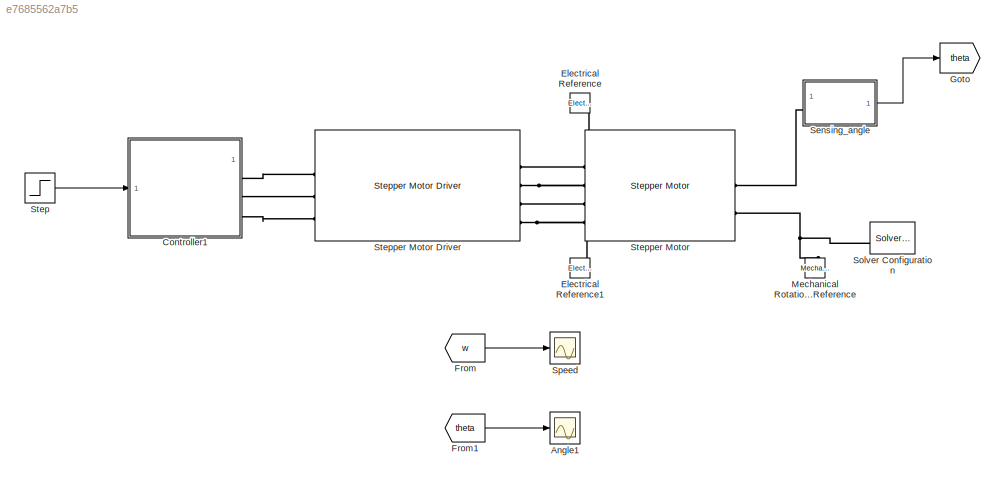
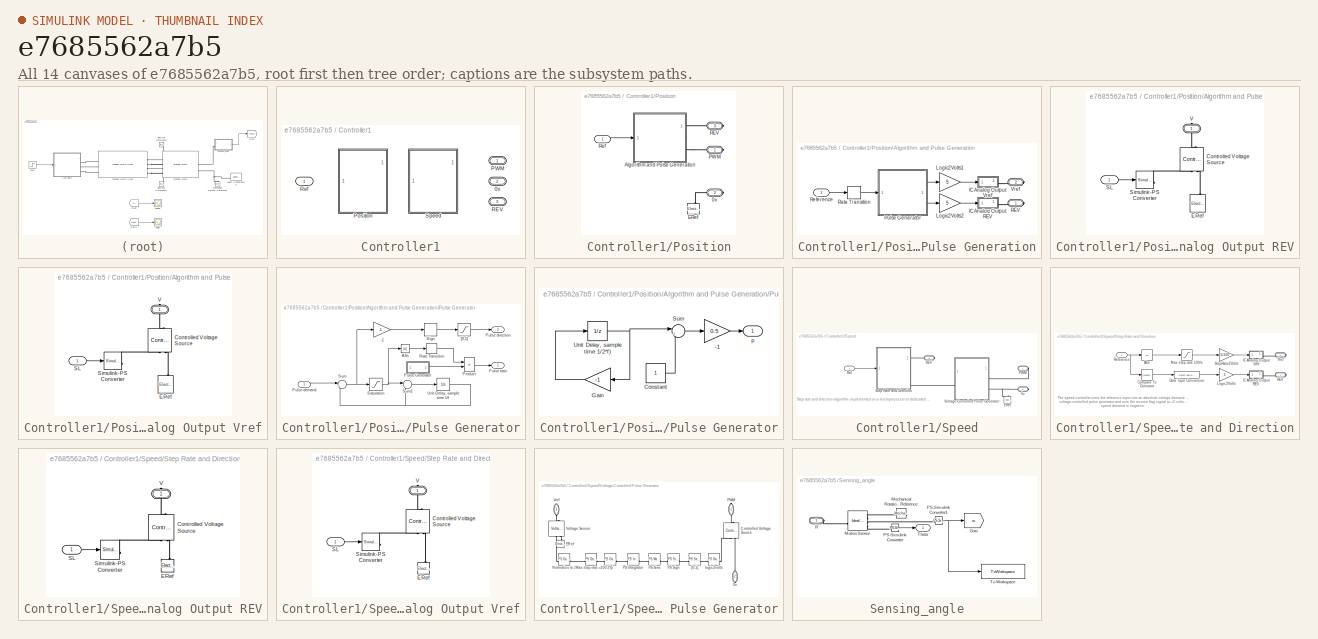
[diagram: thumbnail index - all 14 canvases of the model, root first then tree order]
MODEL slx_e7685562a7b5
KIND model
CONFIG AbsTol = 1e-3
CONFIG EnableMultiTasking = off
CONFIG FixedStep = auto
CONFIG MaxStep = auto
CONFIG MinStep = auto
CONFIG RelTol = 1e-3
CONFIG SampleTimeConstraint = Unconstrained
CONFIG SolverName = VariableStepAuto
CONFIG StartTime = 0.0
CONFIG StopTime = 2
BLOCK [Scope] Angle1
  Floating = off
  NumInputPorts = 1
  ScopeSpecificationString = Simulink.scopes.TimeScopeBlockCfg('CurrentConfiguration', extmgr.ConfigurationSet(extmgr.Configuration('Core','General UI',true),extmgr.Configuration('Core','Source UI',true),extmgr.Configuration('Sources','WiredSimulink',true,'DataLogging',true,'DataLoggingSaveFormat','Array','DataLoggingVariableName','theta'),extmgr.Configuration('Visuals','Time Domain',true,'SerializedDisplays',{struct('MinYLim...<+1418ch>
BLOCK [SubSystem] Controller1
  AttributesFormatString = %<BlockChoice>
  LabelModeActiveChoice = Position
  Variant = on
  VariantControlMode = label
BLOCK [PMIOPort] Controller1/0v
  Port = 2
  Side = Right
BLOCK [PMIOPort] Controller1/PWM
  Side = Right
BLOCK [SubSystem] Controller1/Position
  VariantControl = Position
BLOCK [PMIOPort] Controller1/Position/0v
  Port = 2
  Side = Right
BLOCK [SubSystem] Controller1/Position/Algorithm and Pulse Generation
BLOCK [SubSystem] Controller1/Position/Algorithm and Pulse Generation/IC Analog Output REV
BLOCK [Reference] Controller1/Position/Algorithm and Pulse Generation/IC Analog Output REV/Controlled Voltage Source  REF=fl_lib/Electrical/Electrical Sources/Controlled Voltage
Source
  NameLocation = right
  SourceBlock = fl_lib/Electrical/Electrical Sources/Controlled Voltage\nSource
  SourceType = Controlled Voltage\nSource
BLOCK [Reference] Controller1/Position/Algorithm and Pulse Generation/IC Analog Output REV/ERef  REF=fl_lib/Electrical/Electrical Elements/Electrical Reference
  NameLocation = right
  SourceBlock = fl_lib/Electrical/Electrical Elements/Electrical Reference
  SourceType = Electrical Reference
BLOCK [Inport] Controller1/Position/Algorithm and Pulse Generation/IC Analog Output REV/SL
BLOCK [Reference] Controller1/Position/Algorithm and Pulse Generation/IC Analog Output REV/Simulink-PS Converter  REF=nesl_utility/Simulink-PS
Converter
  SourceBlock = nesl_utility/Simulink-PS\nConverter
  SourceType = Simulink-PS\nConverter
BLOCK [PMIOPort] Controller1/Position/Algorithm and Pulse Generation/IC Analog Output REV/V
  NameLocation = right
  Side = Right
BLOCK [SubSystem] Controller1/Position/Algorithm and Pulse Generation/IC Analog Output Vref
  NameLocation = top
BLOCK [Reference] Controller1/Position/Algorithm and Pulse Generation/IC Analog Output Vref/Controlled Voltage Source  REF=fl_lib/Electrical/Electrical Sources/Controlled Voltage
Source
  NameLocation = right
  SourceBlock = fl_lib/Electrical/Electrical Sources/Controlled Voltage\nSource
  SourceType = Controlled Voltage\nSource
BLOCK [Reference] Controller1/Position/Algorithm and Pulse Generation/IC Analog Output Vref/ERef  REF=fl_lib/Electrical/Electrical Elements/Electrical Reference
  NameLocation = right
  SourceBlock = fl_lib/Electrical/Electrical Elements/Electrical Reference
  SourceType = Electrical Reference
BLOCK [Inport] Controller1/Position/Algorithm and Pulse Generation/IC Analog Output Vref/SL
BLOCK [Reference] Controller1/Position/Algorithm and Pulse Generation/IC Analog Output Vref/Simulink-PS Converter  REF=nesl_utility/Simulink-PS
Converter
  SourceBlock = nesl_utility/Simulink-PS\nConverter
  SourceType = Simulink-PS\nConverter
BLOCK [PMIOPort] Controller1/Position/Algorithm and Pulse Generation/IC Analog Output Vref/V
  NameLocation = right
  Side = Right
BLOCK [Gain] Controller1/Position/Algorithm and Pulse Generation/Logic2Volts1
  Gain = 5
  NameLocation = top
BLOCK [Gain] Controller1/Position/Algorithm and Pulse Generation/Logic2Volts2
  Gain = 5
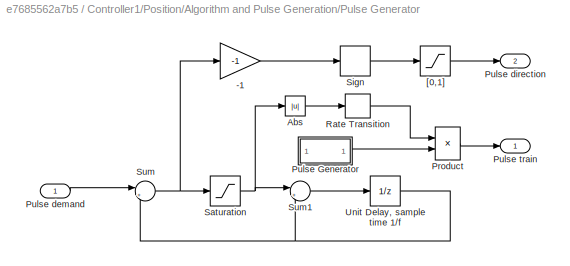
BLOCK [SubSystem] Controller1/Position/Algorithm and Pulse Generation/Pulse Generator
BLOCK [Gain] Controller1/Position/Algorithm and Pulse Generation/Pulse Generator/-1
  Gain = -1
BLOCK [Abs] Controller1/Position/Algorithm and Pulse Generation/Pulse Generator/Abs
  SaturateOnIntegerOverflow = off
BLOCK [Product] Controller1/Position/Algorithm and Pulse Generation/Pulse Generator/Product
  InputSameDT = on
  OutDataTypeStr = Inherit: Same as first input
  SaturateOnIntegerOverflow = on
BLOCK [Inport] Controller1/Position/Algorithm and Pulse Generation/Pulse Generator/Pulse  demand
  SampleTime = 1/f
BLOCK [SubSystem] Controller1/Position/Algorithm and Pulse Generation/Pulse Generator/Pulse Generator
BLOCK [Gain] Controller1/Position/Algorithm and Pulse Generation/Pulse Generator/Pulse Generator/-1
  Gain = 0.5
BLOCK [Constant] Controller1/Position/Algorithm and Pulse Generation/Pulse Generator/Pulse Generator/Constant
  SampleTime = 1/(2*f)
BLOCK [Gain] Controller1/Position/Algorithm and Pulse Generation/Pulse Generator/Pulse Generator/Gain
  Gain = -1
BLOCK [Sum] Controller1/Position/Algorithm and Pulse Generation/Pulse Generator/Pulse Generator/Sum
  Inputs = |++
BLOCK [UnitDelay] Controller1/Position/Algorithm and Pulse Generation/Pulse Generator/Pulse Generator/Unit Delay, sample time 1//2*f)
  HasFrameUpgradeWarning = on
  InitialCondition = -1
  SampleTime = 1/(2*f)
BLOCK [Outport] Controller1/Position/Algorithm and Pulse Generation/Pulse Generator/Pulse Generator/p
  VectorParamsAs1DForOutWhenUnconnected = off
BLOCK [Outport] Controller1/Position/Algorithm and Pulse Generation/Pulse Generator/Pulse direction
  Port = 2
  VectorParamsAs1DForOutWhenUnconnected = off
BLOCK [Outport] Controller1/Position/Algorithm and Pulse Generation/Pulse Generator/Pulse train
  VectorParamsAs1DForOutWhenUnconnected = off
BLOCK [RateTransition] Controller1/Position/Algorithm and Pulse Generation/Pulse Generator/Rate Transition
  Deterministic = off
BLOCK [Saturate] Controller1/Position/Algorithm and Pulse Generation/Pulse Generator/Saturation
  LowerLimit = -1
  UpperLimit = 1
BLOCK [Signum] Controller1/Position/Algorithm and Pulse Generation/Pulse Generator/Sign
BLOCK [Sum] Controller1/Position/Algorithm and Pulse Generation/Pulse Generator/Sum
  Inputs = |+-
BLOCK [Sum] Controller1/Position/Algorithm and Pulse Generation/Pulse Generator/Sum1
  Inputs = |++
BLOCK [UnitDelay] Controller1/Position/Algorithm and Pulse Generation/Pulse Generator/Unit Delay, sample time 1//f
  HasFrameUpgradeWarning = on
  SampleTime = 1/f
BLOCK [Saturate] Controller1/Position/Algorithm and Pulse Generation/Pulse Generator/[0,1]
  LowerLimit = 0
  UpperLimit = 1
BLOCK [PMIOPort] Controller1/Position/Algorithm and Pulse Generation/REV
  Side = Right
BLOCK [RateTransition] Controller1/Position/Algorithm and Pulse Generation/Rate Transition
  Deterministic = off
  NameLocation = top
BLOCK [Inport] Controller1/Position/Algorithm and Pulse Generation/Reference
BLOCK [PMIOPort] Controller1/Position/Algorithm and Pulse Generation/Vref
  NameLocation = top
  Port = 2
  Side = Right
BLOCK [Reference] Controller1/Position/ERef  REF=fl_lib/Electrical/Electrical Elements/Electrical Reference
  NameLocation = left
  SourceBlock = fl_lib/Electrical/Electrical Elements/Electrical Reference
  SourceType = Electrical Reference
BLOCK [PMIOPort] Controller1/Position/PWM
  Side = Right
BLOCK [PMIOPort] Controller1/Position/REV
  NameLocation = top
  Port = 3
  Side = Right
BLOCK [Inport] Controller1/Position/Ref
BLOCK [PMIOPort] Controller1/REV
  Port = 3
  Side = Right
BLOCK [Inport] Controller1/Ref
BLOCK [SubSystem] Controller1/Speed
  VariantControl = Speed
BLOCK [PMIOPort] Controller1/Speed/0v
  Port = 2
  Side = Right
BLOCK [Reference] Controller1/Speed/ERef  REF=fl_lib/Electrical/Electrical Elements/Electrical Reference
  NameLocation = right
  SourceBlock = fl_lib/Electrical/Electrical Elements/Electrical Reference
  SourceType = Electrical Reference
BLOCK [PMIOPort] Controller1/Speed/PWM
  Side = Right
BLOCK [PMIOPort] Controller1/Speed/REV
  Port = 3
  Side = Right
BLOCK [Inport] Controller1/Speed/Ref
BLOCK [SubSystem] Controller1/Speed/Step Rate and Direction
BLOCK [Abs] Controller1/Speed/Step Rate and Direction/Abs
  SaturateOnIntegerOverflow = off
BLOCK [Reference] Controller1/Speed/Step Rate and Direction/Compare To Constant  REF=simulink/Logic and Bit
Operations/Compare
To Constant
  SourceBlock = simulink/Logic and Bit\nOperations/Compare\nTo Constant
  SourceType = Compare To Constant
BLOCK [DataTypeConversion] Controller1/Speed/Step Rate and Direction/Data Type Conversion
  RndMeth = Floor
  SaturateOnIntegerOverflow = off
BLOCK [SubSystem] Controller1/Speed/Step Rate and Direction/IC Analog Output REV
BLOCK [Reference] Controller1/Speed/Step Rate and Direction/IC Analog Output REV/Controlled Voltage Source  REF=fl_lib/Electrical/Electrical Sources/Controlled Voltage
Source
  NameLocation = right
  SourceBlock = fl_lib/Electrical/Electrical Sources/Controlled Voltage\nSource
  SourceType = Controlled Voltage\nSource
BLOCK [Reference] Controller1/Speed/Step Rate and Direction/IC Analog Output REV/ERef  REF=fl_lib/Electrical/Electrical Elements/Electrical Reference
  NameLocation = right
  SourceBlock = fl_lib/Electrical/Electrical Elements/Electrical Reference
  SourceType = Electrical Reference
BLOCK [Inport] Controller1/Speed/Step Rate and Direction/IC Analog Output REV/SL
BLOCK [Reference] Controller1/Speed/Step Rate and Direction/IC Analog Output REV/Simulink-PS Converter  REF=nesl_utility/Simulink-PS
Converter
  SourceBlock = nesl_utility/Simulink-PS\nConverter
  SourceType = Simulink-PS\nConverter
BLOCK [PMIOPort] Controller1/Speed/Step Rate and Direction/IC Analog Output REV/V
  NameLocation = right
  Side = Right
BLOCK [SubSystem] Controller1/Speed/Step Rate and Direction/IC Analog Output Vref
BLOCK [Reference] Controller1/Speed/Step Rate and Direction/IC Analog Output Vref/Controlled Voltage Source  REF=fl_lib/Electrical/Electrical Sources/Controlled Voltage
Source
  NameLocation = right
  SourceBlock = fl_lib/Electrical/Electrical Sources/Controlled Voltage\nSource
  SourceType = Controlled Voltage\nSource
BLOCK [Reference] Controller1/Speed/Step Rate and Direction/IC Analog Output Vref/ERef  REF=fl_lib/Electrical/Electrical Elements/Electrical Reference
  NameLocation = right
  SourceBlock = fl_lib/Electrical/Electrical Elements/Electrical Reference
  SourceType = Electrical Reference
BLOCK [Inport] Controller1/Speed/Step Rate and Direction/IC Analog Output Vref/SL
BLOCK [Reference] Controller1/Speed/Step Rate and Direction/IC Analog Output Vref/Simulink-PS Converter  REF=nesl_utility/Simulink-PS
Converter
  SourceBlock = nesl_utility/Simulink-PS\nConverter
  SourceType = Simulink-PS\nConverter
BLOCK [PMIOPort] Controller1/Speed/Step Rate and Direction/IC Analog Output Vref/V
  NameLocation = right
  Side = Right
BLOCK [Gain] Controller1/Speed/Step Rate and Direction/Logic2Volts
  Gain = 5
BLOCK [Saturate] Controller1/Speed/Step Rate and Direction/Max step rate 100//s
  LowerLimit = 0
  UpperLimit = 100
BLOCK [PMIOPort] Controller1/Speed/Step Rate and Direction/REV
  Side = Right
BLOCK [Inport] Controller1/Speed/Step Rate and Direction/Reference
  NameLocation = top
BLOCK [Gain] Controller1/Speed/Step Rate and Direction/StepRate2Volts
  Gain = 5/100
BLOCK [PMIOPort] Controller1/Speed/Step Rate and Direction/Vref
  Port = 2
  Side = Right
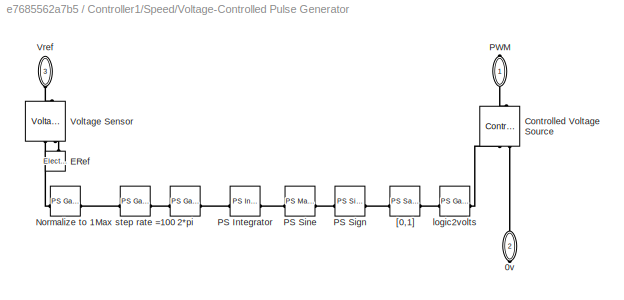
BLOCK [SubSystem] Controller1/Speed/Voltage-Controlled Pulse Generator
BLOCK [PMIOPort] Controller1/Speed/Voltage-Controlled Pulse Generator/0v
  NameLocation = left
  Port = 2
  Side = Right
BLOCK [Reference] Controller1/Speed/Voltage-Controlled Pulse Generator/2*pi  REF=fl_ps_legacy_lib/Legacy Physical
Signals/Functions/PS Gain
  SourceBlock = fl_ps_legacy_lib/Legacy Physical\nSignals/Functions/PS Gain
  SourceType = PS Gain
BLOCK [Reference] Controller1/Speed/Voltage-Controlled Pulse Generator/Controlled Voltage Source  REF=fl_lib/Electrical/Electrical Sources/Controlled Voltage
Source
  NameLocation = left
  SourceBlock = fl_lib/Electrical/Electrical Sources/Controlled Voltage\nSource
  SourceType = Controlled Voltage\nSource
BLOCK [Reference] Controller1/Speed/Voltage-Controlled Pulse Generator/ERef  REF=fl_lib/Electrical/Electrical Elements/Electrical Reference
  NameLocation = right
  SourceBlock = fl_lib/Electrical/Electrical Elements/Electrical Reference
  SourceType = Electrical Reference
BLOCK [Reference] Controller1/Speed/Voltage-Controlled Pulse Generator/Max step rate =100  REF=fl_ps_legacy_lib/Legacy Physical
Signals/Functions/PS Gain
  NameLocation = top
  SourceBlock = fl_ps_legacy_lib/Legacy Physical\nSignals/Functions/PS Gain
  SourceType = PS Gain
BLOCK [Reference] Controller1/Speed/Voltage-Controlled Pulse Generator/Normalize to 1  REF=fl_ps_legacy_lib/Legacy Physical
Signals/Functions/PS Gain
  SourceBlock = fl_ps_legacy_lib/Legacy Physical\nSignals/Functions/PS Gain
  SourceType = PS Gain
BLOCK [Reference] Controller1/Speed/Voltage-Controlled Pulse Generator/PS Integrator  REF=fl_ps_legacy_lib/Legacy Physical
Signals/Linear Operators/PS Integrator
  NameLocation = top
  SourceBlock = fl_ps_legacy_lib/Legacy Physical\nSignals/Linear Operators/PS Integrator
  SourceType = PS Integrator
BLOCK [Reference] Controller1/Speed/Voltage-Controlled Pulse Generator/PS Sign  REF=fl_ps_legacy_lib/Legacy Physical
Signals/Nonlinear Operators/PS Sign
  SourceBlock = fl_ps_legacy_lib/Legacy Physical\nSignals/Nonlinear Operators/PS Sign
  SourceType = PS Sign
BLOCK [Reference] Controller1/Speed/Voltage-Controlled Pulse Generator/PS Sine  REF=fl_ps_legacy_lib/Legacy Physical
Signals/Functions/PS Math Function
  SourceBlock = fl_ps_legacy_lib/Legacy Physical\nSignals/Functions/PS Math Function
  SourceType = PS Math Function
BLOCK [PMIOPort] Controller1/Speed/Voltage-Controlled Pulse Generator/PWM
  NameLocation = left
  Side = Right
BLOCK [Reference] Controller1/Speed/Voltage-Controlled Pulse Generator/Voltage Sensor  REF=fl_lib/Electrical/Electrical Sensors/Voltage Sensor
  NameLocation = right
  SourceBlock = fl_lib/Electrical/Electrical Sensors/Voltage Sensor
  SourceType = Voltage Sensor
BLOCK [PMIOPort] Controller1/Speed/Voltage-Controlled Pulse Generator/Vref
  NameLocation = right
  Port = 3
  Side = Left
BLOCK [Reference] Controller1/Speed/Voltage-Controlled Pulse Generator/[0,1]  REF=fl_ps_legacy_lib/Legacy Physical
Signals/Nonlinear Operators/PS Saturation
  SourceBlock = fl_ps_legacy_lib/Legacy Physical\nSignals/Nonlinear Operators/PS Saturation
  SourceType = PS Saturation
BLOCK [Reference] Controller1/Speed/Voltage-Controlled Pulse Generator/logic2volts  REF=fl_ps_legacy_lib/Legacy Physical
Signals/Functions/PS Gain
  SourceBlock = fl_ps_legacy_lib/Legacy Physical\nSignals/Functions/PS Gain
  SourceType = PS Gain
BLOCK [Reference] Electrical Reference  REF=fl_lib/Electrical/Electrical Elements/Electrical Reference
  NameLocation = top
  SourceBlock = fl_lib/Electrical/Electrical Elements/Electrical Reference
  SourceType = Electrical Reference
BLOCK [Reference] Electrical Reference1  REF=fl_lib/Electrical/Electrical Elements/Electrical Reference
  NameLocation = top
  SourceBlock = fl_lib/Electrical/Electrical Elements/Electrical Reference
  SourceType = Electrical Reference
BLOCK [From] From
  GotoTag = w
  TagVisibility = global
BLOCK [From] From1
  GotoTag = theta
BLOCK [Goto] Goto
  GotoTag = theta
BLOCK [Reference] Mechanical Rotational Reference  REF=fl_lib/Mechanical/Rotational Elements/Mechanical
Rotational Reference
  NameLocation = right
  SourceBlock = fl_lib/Mechanical/Rotational Elements/Mechanical\nRotational Reference
  SourceType = Mechanical\nRotational Reference
BLOCK [SubSystem] Sensing_angle
BLOCK [Reference] Sensing_angle/ Motion Sensor  REF=fl_lib/Mechanical/Mechanical Sensors/Ideal Rotational
Motion Sensor
  SourceBlock = fl_lib/Mechanical/Mechanical Sensors/Ideal Rotational\nMotion Sensor
  SourceType = Ideal Rotational\nMotion Sensor
BLOCK [Goto] Sensing_angle/Goto
  GotoTag = w
  TagVisibility = global
BLOCK [Reference] Sensing_angle/Mechanical Rotational Reference  REF=fl_lib/Mechanical/Rotational Elements/Mechanical
Rotational Reference
  NameLocation = top
  SourceBlock = fl_lib/Mechanical/Rotational Elements/Mechanical\nRotational Reference
  SourceType = Mechanical\nRotational Reference
BLOCK [Reference] Sensing_angle/PS-Simulink Converter  REF=nesl_utility/PS-Simulink
Converter
  SourceBlock = nesl_utility/PS-Simulink\nConverter
  SourceType = PS-Simulink\nConverter
BLOCK [Reference] Sensing_angle/PS-Simulink Converter1  REF=nesl_utility/PS-Simulink
Converter
  SourceBlock = nesl_utility/PS-Simulink\nConverter
  SourceType = PS-Simulink\nConverter
BLOCK [PMIOPort] Sensing_angle/R
  Side = Left
BLOCK [Outport] Sensing_angle/Theta
BLOCK [ToWorkspace] Sensing_angle/To Workspace
  FixptAsFi = on
  MaxDataPoints = inf
  SampleTime = -1
  SaveFormat = Timeseries
  VariableName = simout
BLOCK [Reference] Solver Configuration  REF=nesl_utility/Solver
Configuration
  SourceBlock = nesl_utility/Solver\nConfiguration
  SourceType = Solver\nConfiguration
BLOCK [Scope] Speed
  Floating = off
  NumInputPorts = 1
  ScopeSpecificationString = Simulink.scopes.TimeScopeBlockCfg('CurrentConfiguration', extmgr.ConfigurationSet(extmgr.Configuration('Core','General UI',true),extmgr.Configuration('Core','Source UI',true),extmgr.Configuration('Sources','WiredSimulink',true,'DataLogging',true,'DataLoggingSaveFormat','Array','DataLoggingVariableName','speed'),extmgr.Configuration('Visuals','Time Domain',true,'SerializedDisplays',{struct('MinYLim...<+1433ch>
BLOCK [Step] Step
  After = 0
  Before = 10
  SampleTime = 0
BLOCK [Reference] Stepper Motor  REF=ee_lib/Electromechanical/Reluctance & Stepper/Stepper Motor
  SourceBlock = ee_lib/Electromechanical/Reluctance & Stepper/Stepper Motor
  SourceType = Stepper Motor
BLOCK [Reference] Stepper Motor Driver  REF=ee_lib/Electromechanical/Reluctance & Stepper/Stepper Motor Driver
  SourceBlock = ee_lib/Electromechanical/Reluctance & Stepper/Stepper Motor Driver
  SourceType = Stepper Motor Driver
ANNOTATION Controller1/Speed: Step rate and direction algorithm implemented on a microprocessor or dedicated discrete chip
ANNOTATION Controller1/Speed/Step Rate and Direction: The speed controller turns the reference input into an absolute voltage demand for the voltage-controlled pulse generator and sets the reverse flag signal to +5 volts when the speed demand is negative.
LINE Controller1/Position/Algorithm and Pulse Generation/IC Analog Output REV/SL:1 -> Controller1/Position/Algorithm and Pulse Generation/IC Analog Output REV/Simulink-PS Converter:1
LINE Controller1/Position/Algorithm and Pulse Generation/IC Analog Output Vref/SL:1 -> Controller1/Position/Algorithm and Pulse Generation/IC Analog Output Vref/Simulink-PS Converter:1
LINE Controller1/Position/Algorithm and Pulse Generation/Logic2Volts1:1 -> Controller1/Position/Algorithm and Pulse Generation/IC Analog Output Vref:1
LINE Controller1/Position/Algorithm and Pulse Generation/Logic2Volts2:1 -> Controller1/Position/Algorithm and Pulse Generation/IC Analog Output REV:1
LINE Controller1/Position/Algorithm and Pulse Generation/Pulse Generator/-1:1 -> Controller1/Position/Algorithm and Pulse Generation/Pulse Generator/Sign:1
LINE Controller1/Position/Algorithm and Pulse Generation/Pulse Generator/Abs:1 -> Controller1/Position/Algorithm and Pulse Generation/Pulse Generator/Rate Transition:1
LINE Controller1/Position/Algorithm and Pulse Generation/Pulse Generator/Product:1 -> Controller1/Position/Algorithm and Pulse Generation/Pulse Generator/Pulse train:1
LINE Controller1/Position/Algorithm and Pulse Generation/Pulse Generator/Pulse  demand:1 -> Controller1/Position/Algorithm and Pulse Generation/Pulse Generator/Sum:1
LINE Controller1/Position/Algorithm and Pulse Generation/Pulse Generator/Pulse Generator/-1:1 -> Controller1/Position/Algorithm and Pulse Generation/Pulse Generator/Pulse Generator/p:1
LINE Controller1/Position/Algorithm and Pulse Generation/Pulse Generator/Pulse Generator/Constant:1 -> Controller1/Position/Algorithm and Pulse Generation/Pulse Generator/Pulse Generator/Sum:2
LINE Controller1/Position/Algorithm and Pulse Generation/Pulse Generator/Pulse Generator/Gain:1 -> Controller1/Position/Algorithm and Pulse Generation/Pulse Generator/Pulse Generator/Unit Delay, sample time 1//2*f):1
LINE Controller1/Position/Algorithm and Pulse Generation/Pulse Generator/Pulse Generator/Sum:1 -> Controller1/Position/Algorithm and Pulse Generation/Pulse Generator/Pulse Generator/-1:1
NET Controller1/Position/Algorithm and Pulse Generation/Pulse Generator/Pulse Generator/Unit Delay, sample time 1//2*f):1 -> Controller1/Position/Algorithm and Pulse Generation/Pulse Generator/Pulse Generator/Gain:1, Controller1/Position/Algorithm and Pulse Generation/Pulse Generator/Pulse Generator/Sum:1
LINE Controller1/Position/Algorithm and Pulse Generation/Pulse Generator/Pulse Generator:1 -> Controller1/Position/Algorithm and Pulse Generation/Pulse Generator/Product:2
LINE Controller1/Position/Algorithm and Pulse Generation/Pulse Generator/Rate Transition:1 -> Controller1/Position/Algorithm and Pulse Generation/Pulse Generator/Product:1
NET Controller1/Position/Algorithm and Pulse Generation/Pulse Generator/Saturation:1 -> Controller1/Position/Algorithm and Pulse Generation/Pulse Generator/Abs:1, Controller1/Position/Algorithm and Pulse Generation/Pulse Generator/Sum1:1
LINE Controller1/Position/Algorithm and Pulse Generation/Pulse Generator/Sign:1 -> Controller1/Position/Algorithm and Pulse Generation/Pulse Generator/[0,1]:1
LINE Controller1/Position/Algorithm and Pulse Generation/Pulse Generator/Sum1:1 -> Controller1/Position/Algorithm and Pulse Generation/Pulse Generator/Unit Delay, sample time 1//f:1
NET Controller1/Position/Algorithm and Pulse Generation/Pulse Generator/Sum:1 -> Controller1/Position/Algorithm and Pulse Generation/Pulse Generator/-1:1, Controller1/Position/Algorithm and Pulse Generation/Pulse Generator/Saturation:1
NET Controller1/Position/Algorithm and Pulse Generation/Pulse Generator/Unit Delay, sample time 1//f:1 -> Controller1/Position/Algorithm and Pulse Generation/Pulse Generator/Sum1:2, Controller1/Position/Algorithm and Pulse Generation/Pulse Generator/Sum:2
LINE Controller1/Position/Algorithm and Pulse Generation/Pulse Generator/[0,1]:1 -> Controller1/Position/Algorithm and Pulse Generation/Pulse Generator/Pulse direction:1
LINE Controller1/Position/Algorithm and Pulse Generation/Pulse Generator:1 -> Controller1/Position/Algorithm and Pulse Generation/Logic2Volts1:1
LINE Controller1/Position/Algorithm and Pulse Generation/Pulse Generator:2 -> Controller1/Position/Algorithm and Pulse Generation/Logic2Volts2:1
LINE Controller1/Position/Algorithm and Pulse Generation/Rate Transition:1 -> Controller1/Position/Algorithm and Pulse Generation/Pulse Generator:1
LINE Controller1/Position/Algorithm and Pulse Generation/Reference:1 -> Controller1/Position/Algorithm and Pulse Generation/Rate Transition:1
LINE Controller1/Position/Ref:1 -> Controller1/Position/Algorithm and Pulse Generation:1
LINE Controller1/Speed/Ref:1 -> Controller1/Speed/Step Rate and Direction:1
LINE Controller1/Speed/Step Rate and Direction/Abs:1 -> Controller1/Speed/Step Rate and Direction/Max step rate 100//s:1
LINE Controller1/Speed/Step Rate and Direction/Compare To Constant:1 -> Controller1/Speed/Step Rate and Direction/Data Type Conversion:1
LINE Controller1/Speed/Step Rate and Direction/Data Type Conversion:1 -> Controller1/Speed/Step Rate and Direction/Logic2Volts:1
LINE Controller1/Speed/Step Rate and Direction/IC Analog Output REV/SL:1 -> Controller1/Speed/Step Rate and Direction/IC Analog Output REV/Simulink-PS Converter:1
LINE Controller1/Speed/Step Rate and Direction/IC Analog Output Vref/SL:1 -> Controller1/Speed/Step Rate and Direction/IC Analog Output Vref/Simulink-PS Converter:1
LINE Controller1/Speed/Step Rate and Direction/Logic2Volts:1 -> Controller1/Speed/Step Rate and Direction/IC Analog Output REV:1
LINE Controller1/Speed/Step Rate and Direction/Max step rate 100//s:1 -> Controller1/Speed/Step Rate and Direction/StepRate2Volts:1
NET Controller1/Speed/Step Rate and Direction/Reference:1 -> Controller1/Speed/Step Rate and Direction/Abs:1, Controller1/Speed/Step Rate and Direction/Compare To Constant:1
LINE Controller1/Speed/Step Rate and Direction/StepRate2Volts:1 -> Controller1/Speed/Step Rate and Direction/IC Analog Output Vref:1
LINE From1:1 -> Angle1:1
LINE From:1 -> Speed:1
NET Sensing_angle/PS-Simulink Converter1:1 -> Sensing_angle/Goto:1, Sensing_angle/To Workspace:1
LINE Sensing_angle/PS-Simulink Converter:1 -> Sensing_angle/Theta:1
LINE Sensing_angle:1 -> Goto:1
LINE Step:1 -> Controller1:1
PLINE Controller1/Position/0v:RConn1 -- Controller1/Position/ERef:LConn1
PLINE Controller1/Position/Algorithm and Pulse Generation/IC Analog Output REV/Controlled Voltage Source:LConn1 -- Controller1/Position/Algorithm and Pulse Generation/IC Analog Output REV/V:RConn1
PLINE Controller1/Position/Algorithm and Pulse Generation/IC Analog Output REV/Controlled Voltage Source:RConn1 -- Controller1/Position/Algorithm and Pulse Generation/IC Analog Output REV/Simulink-PS Converter:RConn1
PLINE Controller1/Position/Algorithm and Pulse Generation/IC Analog Output REV/Controlled Voltage Source:RConn2 -- Controller1/Position/Algorithm and Pulse Generation/IC Analog Output REV/ERef:LConn1
PLINE Controller1/Position/Algorithm and Pulse Generation/IC Analog Output REV:RConn1 -- Controller1/Position/Algorithm and Pulse Generation/REV:RConn1
PLINE Controller1/Position/Algorithm and Pulse Generation/IC Analog Output Vref/Controlled Voltage Source:LConn1 -- Controller1/Position/Algorithm and Pulse Generation/IC Analog Output Vref/V:RConn1
PLINE Controller1/Position/Algorithm and Pulse Generation/IC Analog Output Vref/Controlled Voltage Source:RConn1 -- Controller1/Position/Algorithm and Pulse Generation/IC Analog Output Vref/Simulink-PS Converter:RConn1
PLINE Controller1/Position/Algorithm and Pulse Generation/IC Analog Output Vref/Controlled Voltage Source:RConn2 -- Controller1/Position/Algorithm and Pulse Generation/IC Analog Output Vref/ERef:LConn1
PLINE Controller1/Position/Algorithm and Pulse Generation/IC Analog Output Vref:RConn1 -- Controller1/Position/Algorithm and Pulse Generation/Vref:RConn1
PLINE Controller1/Position/Algorithm and Pulse Generation:RConn1 -- Controller1/Position/REV:RConn1
PLINE Controller1/Position/Algorithm and Pulse Generation:RConn2 -- Controller1/Position/PWM:RConn1
PNET net1: Controller1/Speed/0v:RConn1 -- Controller1/Speed/ERef:LConn1 -- Controller1/Speed/Voltage-Controlled Pulse Generator:RConn2
PLINE Controller1/Speed/PWM:RConn1 -- Controller1/Speed/Voltage-Controlled Pulse Generator:RConn1
PLINE Controller1/Speed/REV:RConn1 -- Controller1/Speed/Step Rate and Direction:RConn1
PLINE Controller1/Speed/Step Rate and Direction/IC Analog Output REV/Controlled Voltage Source:LConn1 -- Controller1/Speed/Step Rate and Direction/IC Analog Output REV/V:RConn1
PLINE Controller1/Speed/Step Rate and Direction/IC Analog Output REV/Controlled Voltage Source:RConn1 -- Controller1/Speed/Step Rate and Direction/IC Analog Output REV/Simulink-PS Converter:RConn1
PLINE Controller1/Speed/Step Rate and Direction/IC Analog Output REV/Controlled Voltage Source:RConn2 -- Controller1/Speed/Step Rate and Direction/IC Analog Output REV/ERef:LConn1
PLINE Controller1/Speed/Step Rate and Direction/IC Analog Output REV:RConn1 -- Controller1/Speed/Step Rate and Direction/REV:RConn1
PLINE Controller1/Speed/Step Rate and Direction/IC Analog Output Vref/Controlled Voltage Source:LConn1 -- Controller1/Speed/Step Rate and Direction/IC Analog Output Vref/V:RConn1
PLINE Controller1/Speed/Step Rate and Direction/IC Analog Output Vref/Controlled Voltage Source:RConn1 -- Controller1/Speed/Step Rate and Direction/IC Analog Output Vref/Simulink-PS Converter:RConn1
PLINE Controller1/Speed/Step Rate and Direction/IC Analog Output Vref/Controlled Voltage Source:RConn2 -- Controller1/Speed/Step Rate and Direction/IC Analog Output Vref/ERef:LConn1
PLINE Controller1/Speed/Step Rate and Direction/IC Analog Output Vref:RConn1 -- Controller1/Speed/Step Rate and Direction/Vref:RConn1
PLINE Controller1/Speed/Step Rate and Direction:RConn2 -- Controller1/Speed/Voltage-Controlled Pulse Generator:LConn1
PLINE Controller1/Speed/Voltage-Controlled Pulse Generator/0v:RConn1 -- Controller1/Speed/Voltage-Controlled Pulse Generator/Controlled Voltage Source:RConn2
PLINE Controller1/Speed/Voltage-Controlled Pulse Generator/2*pi:LConn1 -- Controller1/Speed/Voltage-Controlled Pulse Generator/Max step rate =100:RConn1
PLINE Controller1/Speed/Voltage-Controlled Pulse Generator/2*pi:RConn1 -- Controller1/Speed/Voltage-Controlled Pulse Generator/PS Integrator:LConn1
PLINE Controller1/Speed/Voltage-Controlled Pulse Generator/Controlled Voltage Source:LConn1 -- Controller1/Speed/Voltage-Controlled Pulse Generator/PWM:RConn1
PLINE Controller1/Speed/Voltage-Controlled Pulse Generator/Controlled Voltage Source:RConn1 -- Controller1/Speed/Voltage-Controlled Pulse Generator/logic2volts:RConn1
PLINE Controller1/Speed/Voltage-Controlled Pulse Generator/ERef:LConn1 -- Controller1/Speed/Voltage-Controlled Pulse Generator/Voltage Sensor:RConn2
PLINE Controller1/Speed/Voltage-Controlled Pulse Generator/Max step rate =100:LConn1 -- Controller1/Speed/Voltage-Controlled Pulse Generator/Normalize to 1:RConn1
PLINE Controller1/Speed/Voltage-Controlled Pulse Generator/Normalize to 1:LConn1 -- Controller1/Speed/Voltage-Controlled Pulse Generator/Voltage Sensor:RConn1
PLINE Controller1/Speed/Voltage-Controlled Pulse Generator/PS Integrator:RConn1 -- Controller1/Speed/Voltage-Controlled Pulse Generator/PS Sine:LConn1
PLINE Controller1/Speed/Voltage-Controlled Pulse Generator/PS Sign:LConn1 -- Controller1/Speed/Voltage-Controlled Pulse Generator/PS Sine:RConn1
PLINE Controller1/Speed/Voltage-Controlled Pulse Generator/PS Sign:RConn1 -- Controller1/Speed/Voltage-Controlled Pulse Generator/[0,1]:LConn1
PLINE Controller1/Speed/Voltage-Controlled Pulse Generator/Voltage Sensor:LConn1 -- Controller1/Speed/Voltage-Controlled Pulse Generator/Vref:RConn1
PLINE Controller1/Speed/Voltage-Controlled Pulse Generator/[0,1]:RConn1 -- Controller1/Speed/Voltage-Controlled Pulse Generator/logic2volts:LConn1
PLINE Controller1:RConn1 -- Stepper Motor Driver:LConn1
PLINE Controller1:RConn2 -- Stepper Motor Driver:LConn2
PLINE Controller1:RConn3 -- Stepper Motor Driver:LConn3
PNET net2: Electrical Reference1:LConn1 -- Stepper Motor Driver:RConn4 -- Stepper Motor:LConn4
PNET net3: Electrical Reference:LConn1 -- Stepper Motor Driver:RConn2 -- Stepper Motor:LConn2
PNET net4: Mechanical Rotational Reference:LConn1 -- Solver Configuration:RConn1 -- Stepper Motor:RConn2
PLINE Sensing_angle/ Motion Sensor:LConn1 -- Sensing_angle/R:RConn1
PLINE Sensing_angle/ Motion Sensor:RConn1 -- Sensing_angle/Mechanical Rotational Reference:LConn1
PLINE Sensing_angle/ Motion Sensor:RConn2 -- Sensing_angle/PS-Simulink Converter1:LConn1
PLINE Sensing_angle/ Motion Sensor:RConn3 -- Sensing_angle/PS-Simulink Converter:LConn1
PLINE Sensing_angle:LConn1 -- Stepper Motor:RConn1
PLINE Stepper Motor Driver:RConn1 -- Stepper Motor:LConn1
PLINE Stepper Motor Driver:RConn3 -- Stepper Motor:LConn3
note: NET lines group one-source signal fan-out (src -> all destinations, sorted); 1:1 wires keep LINE; PNET lines group multi-terminal physical nets as a canonical sorted terminal list (undirected conserving connections); 2-terminal nets keep the pairwise PLINE form
